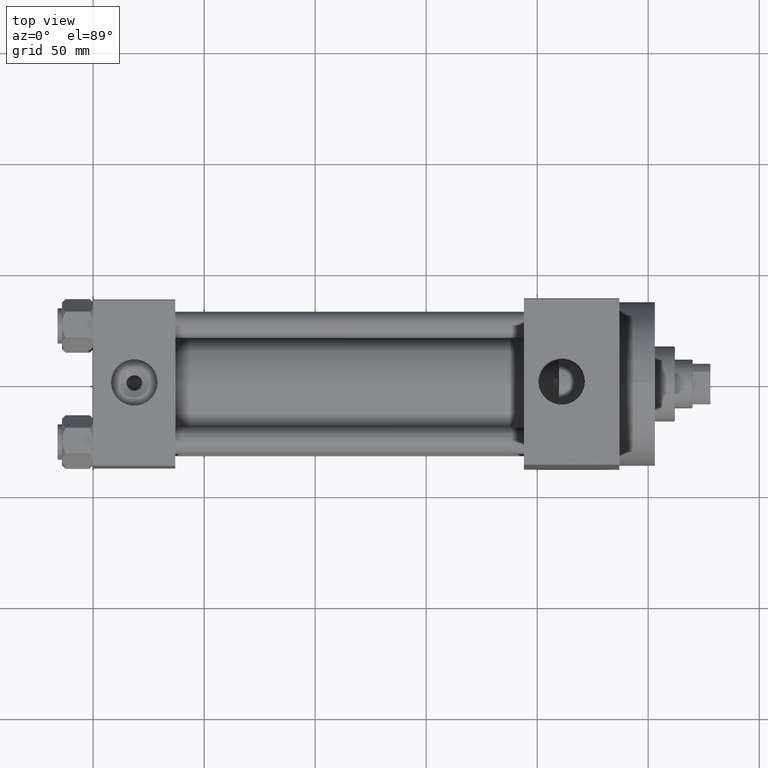
[diagram: clean part render]
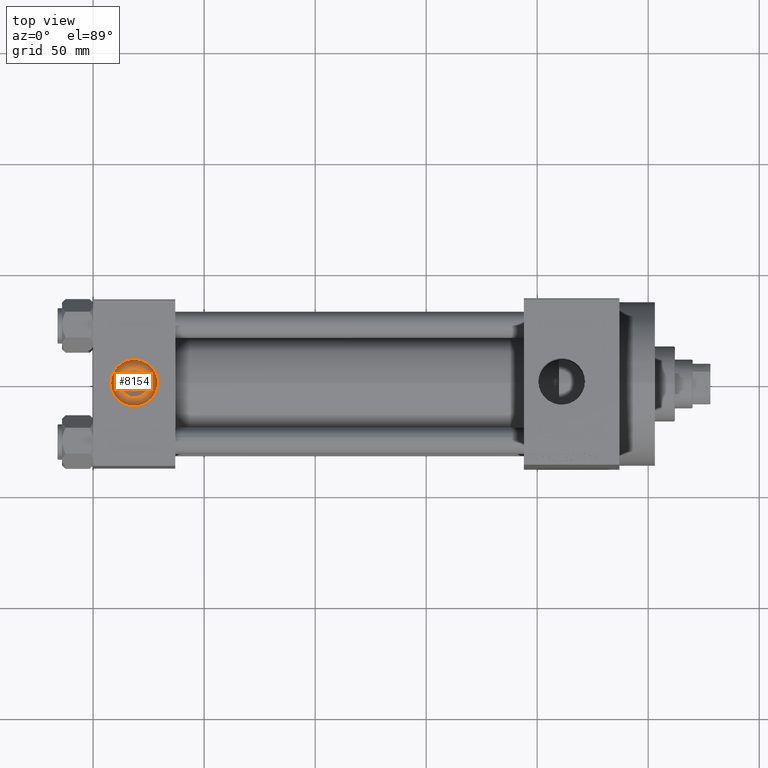
[diagram: same view with one face highlighted and labeled with its STEP entity id]
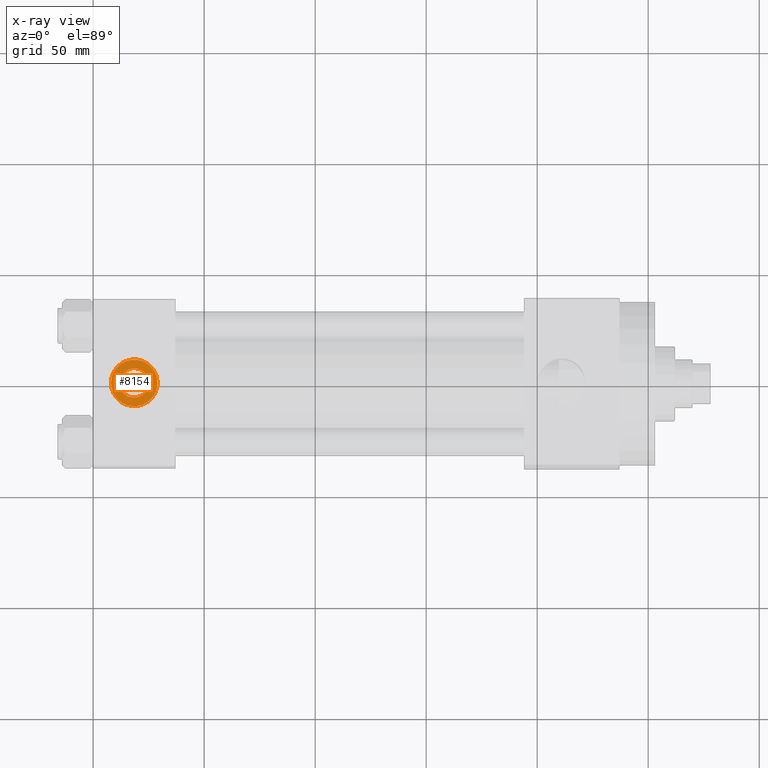
[diagram: x-ray of the same camera — body ghosted, the highlighted face saturated]
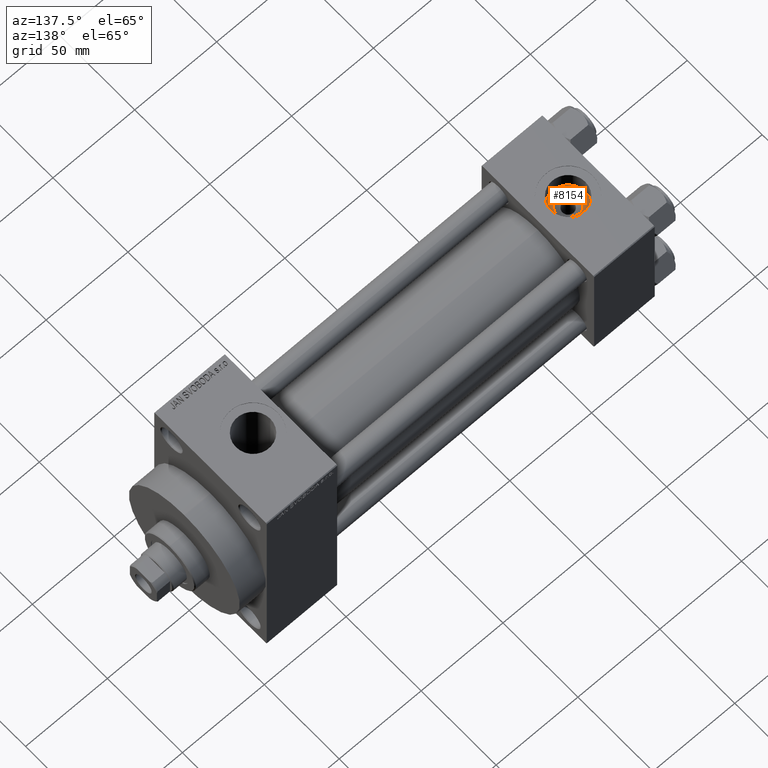
[diagram: same view with one face highlighted and labeled with its STEP entity id]
A machine part, top view. The second image highlights one B-rep face of the part: STEP entity #8154.
The next image is the same camera in x-ray: the body ghosted, the highlighted face saturated — about 0% of this face is hidden behind the body in this view.
A second angle (auxiliary view) of the same face is appended — the face is thin or edge-on in the first view.
In plain terms, the highlighted planar face has unit normal (0, 0, 1).
Its self-contained STEP definition (entity closure, byte-faithful):
#469 = VERTEX_POINT ( 'NONE', #19687 ) ;
#1145 = AXIS2_PLACEMENT_3D ( 'NONE', #8679, #16312, #23229 ) ;
#1924 = FACE_OUTER_BOUND ( 'NONE', #34573, .T. ) ;
#2225 = CIRCLE ( 'NONE', #40358, 10.48000000000000043 ) ;
#3117 = VERTEX_POINT ( 'NONE', #21520 ) ;
#7091 = EDGE_CURVE ( 'NONE', #7594, #3117, #15631, .T. ) ;
#7594 = VERTEX_POINT ( 'NONE', #37386 ) ;
#8154 = ADVANCED_FACE ( 'NONE', ( #22947, #1924 ), #19141, .T. ) ;
#8679 = CARTESIAN_POINT ( 'NONE',  ( 18.50000000000000000, -5.204170427930421283E-15, 26.69999999999999929 ) ) ;
#10099 = ORIENTED_EDGE ( 'NONE', *, *, #19317, .T. ) ;
#12084 = CARTESIAN_POINT ( 'NONE',  ( 18.50000000000000000, -5.204170427930421283E-15, 26.69999999999999929 ) ) ;
#12607 = AXIS2_PLACEMENT_3D ( 'NONE', #15570, #19600, #16255 ) ;
#14957 = DIRECTION ( 'NONE',  ( 0.000000000000000000, 0.000000000000000000, 1.000000000000000000 ) ) ;
#15570 = CARTESIAN_POINT ( 'NONE',  ( 18.50000000000000000, -5.204170427930421283E-15, 26.69999999999999929 ) ) ;
#15631 = CIRCLE ( 'NONE', #1145, 6.640000000000041425 ) ;
#15813 = EDGE_CURVE ( 'NONE', #3117, #7594, #47033, .T. ) ;
#16255 = DIRECTION ( 'NONE',  ( 1.000000000000000000, 0.000000000000000000, -0.000000000000000000 ) ) ;
#16312 = DIRECTION ( 'NONE',  ( -0.000000000000000000, -0.000000000000000000, -1.000000000000000000 ) ) ;
#17046 = DIRECTION ( 'NONE',  ( -0.000000000000000000, -0.000000000000000000, -1.000000000000000000 ) ) ;
#18081 = AXIS2_PLACEMENT_3D ( 'NONE', #20858, #17046, #24431 ) ;
#18188 = ORIENTED_EDGE ( 'NONE', *, *, #7091, .T. ) ;
#19141 = PLANE ( 'NONE',  #12607 ) ;
#19317 = EDGE_CURVE ( 'NONE', #45600, #469, #21983, .T. ) ;
#19600 = DIRECTION ( 'NONE',  ( 0.000000000000000000, 0.000000000000000000, 1.000000000000000000 ) ) ;
#19687 = CARTESIAN_POINT ( 'NONE',  ( 28.98000000000000043, -5.204170427930421283E-15, 26.69999999999999929 ) ) ;
#20858 = CARTESIAN_POINT ( 'NONE',  ( 18.50000000000000000, -5.204170427930421283E-15, 26.69999999999999929 ) ) ;
#21296 = ORIENTED_EDGE ( 'NONE', *, *, #15813, .T. ) ;
#21520 = CARTESIAN_POINT ( 'NONE',  ( 25.14000000000003965, -5.204170427930421283E-15, 26.69999999999999929 ) ) ;
#21983 = CIRCLE ( 'NONE', #28071, 10.48000000000000043 ) ;
#22271 = CARTESIAN_POINT ( 'NONE',  ( 18.50000000000000000, -5.204170427930421283E-15, 26.69999999999999929 ) ) ;
#22947 = FACE_BOUND ( 'NONE', #45591, .T. ) ;
#23182 = ORIENTED_EDGE ( 'NONE', *, *, #33323, .T. ) ;
#23229 = DIRECTION ( 'NONE',  ( 1.000000000000000000, 0.000000000000000000, 0.000000000000000000 ) ) ;
#24431 = DIRECTION ( 'NONE',  ( 1.000000000000000000, 0.000000000000000000, 0.000000000000000000 ) ) ;
#26090 = DIRECTION ( 'NONE',  ( 0.000000000000000000, 0.000000000000000000, 1.000000000000000000 ) ) ;
#26384 = DIRECTION ( 'NONE',  ( 1.000000000000000000, 0.000000000000000000, 0.000000000000000000 ) ) ;
#28071 = AXIS2_PLACEMENT_3D ( 'NONE', #12084, #14957, #26384 ) ;
#33323 = EDGE_CURVE ( 'NONE', #469, #45600, #2225, .T. ) ;
#34573 = EDGE_LOOP ( 'NONE', ( #23182, #10099 ) ) ;
#37386 = CARTESIAN_POINT ( 'NONE',  ( 11.85999999999995680, -4.391004953296573652E-15, 26.69999999999999929 ) ) ;
#40358 = AXIS2_PLACEMENT_3D ( 'NONE', #22271, #26090, #44227 ) ;
#44040 = CARTESIAN_POINT ( 'NONE',  ( 8.019999999999999574, -3.920740582423995006E-15, 26.69999999999999929 ) ) ;
#44227 = DIRECTION ( 'NONE',  ( 1.000000000000000000, 0.000000000000000000, 0.000000000000000000 ) ) ;
#45591 = EDGE_LOOP ( 'NONE', ( #21296, #18188 ) ) ;
#45600 = VERTEX_POINT ( 'NONE', #44040 ) ;
#47033 = CIRCLE ( 'NONE', #18081, 6.640000000000041425 ) ;